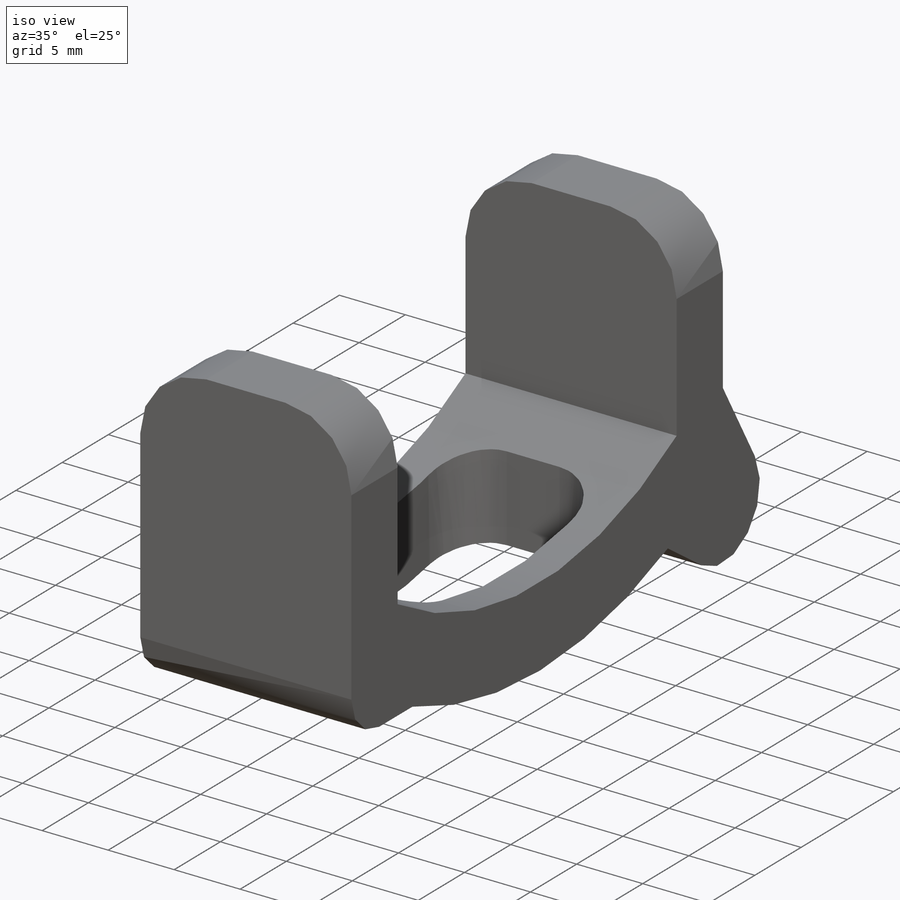
[diagram: iso view]
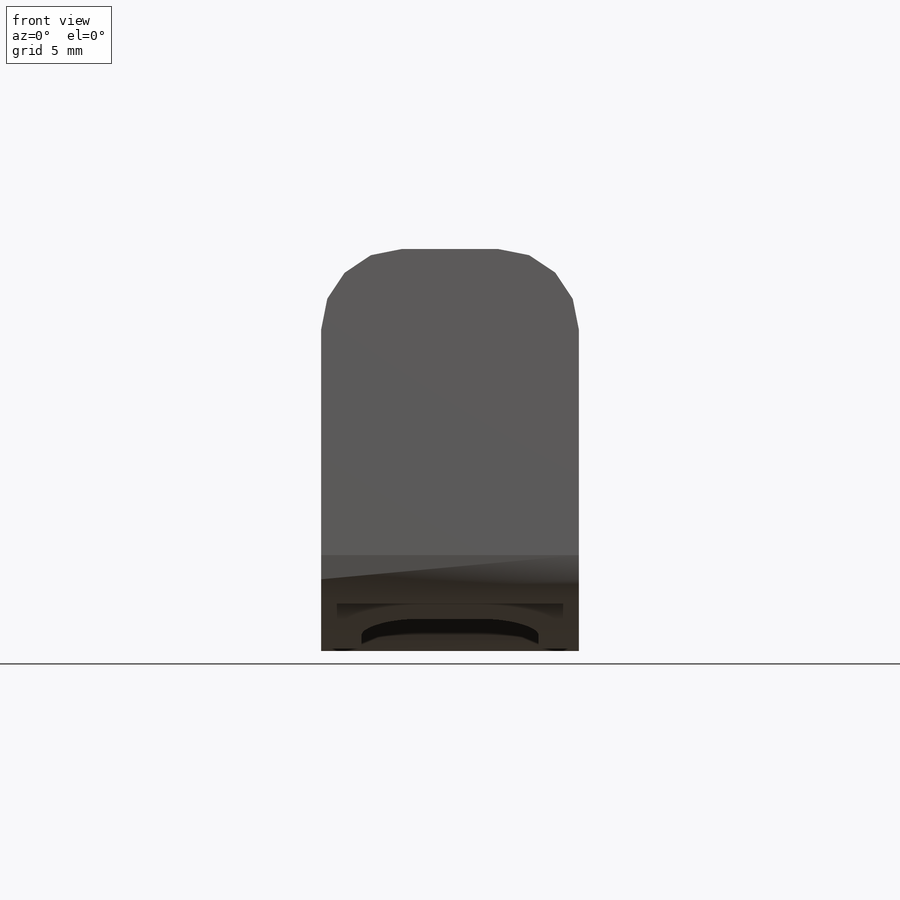
[diagram: front view]
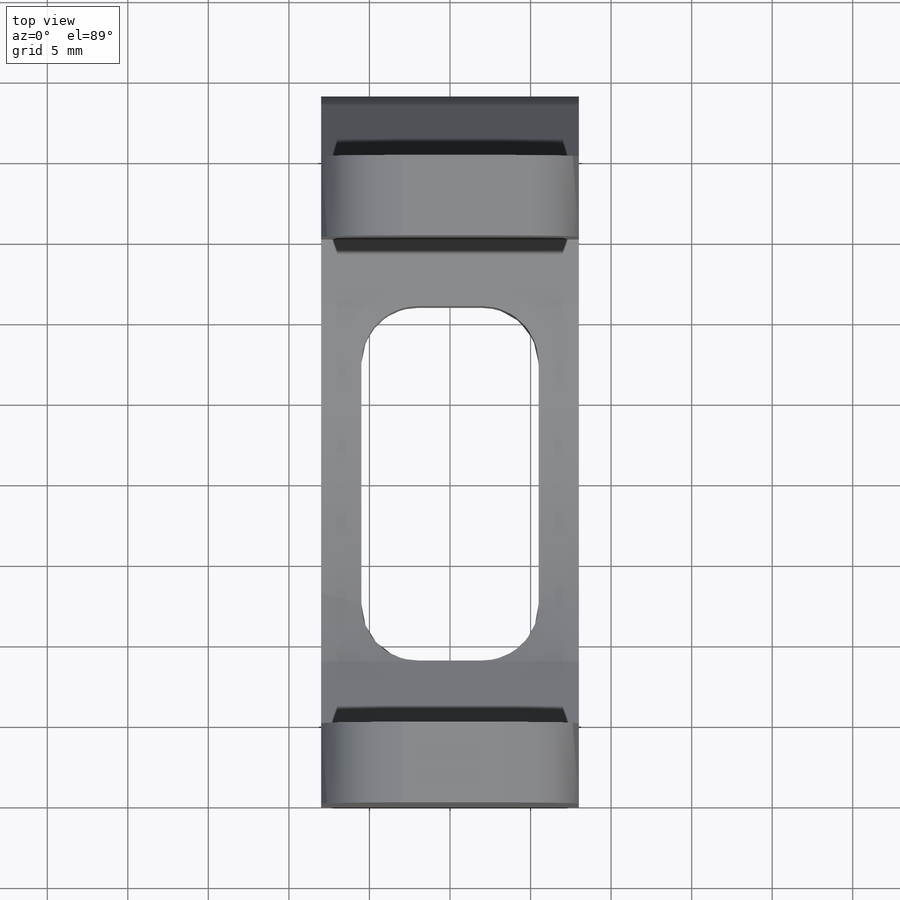
[diagram: top view]
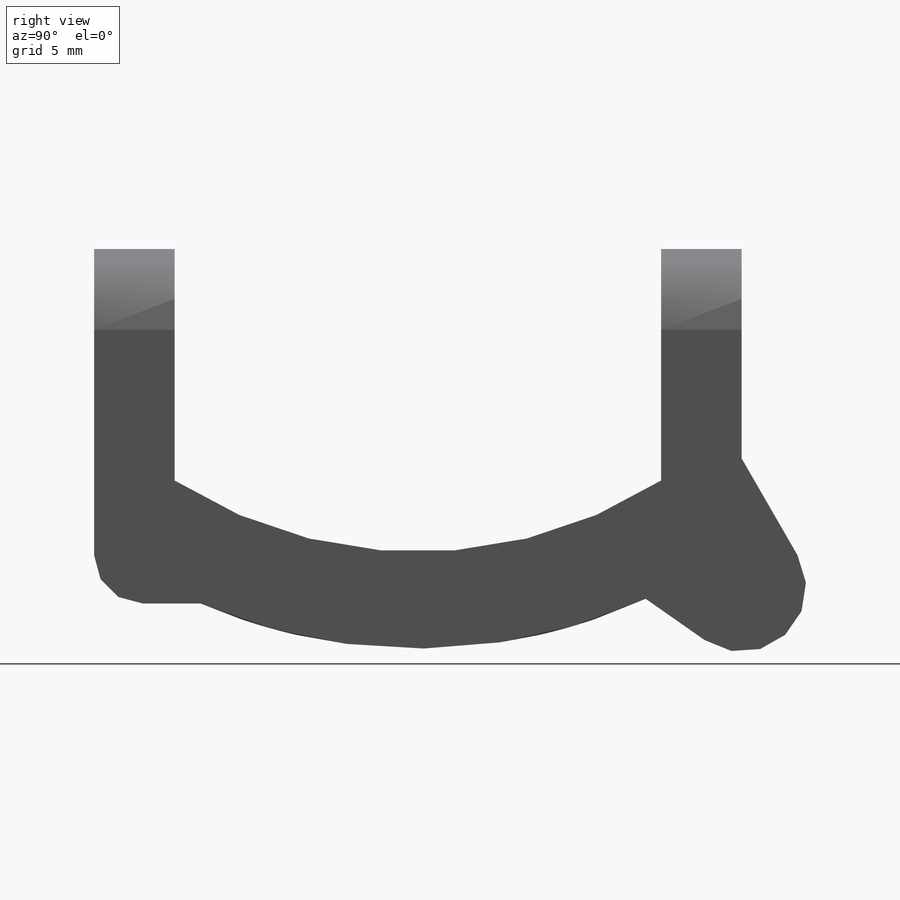
[diagram: right view]
SOLIDWORKS PART (.sldprt)
format: sldprt  version: not decoded by parser v0  size: 262,144 bytes
history: native  units: mm
features: plane x4, fillet x3, sketch x2, material x1, extrude x1, cut_extrude x1 (+10 scaffold rows collapsed)
feature tree (22):
  scaffold x10  (default folders/planes/origin — collapsed)
  material  "Materiál <není určen>"
  plane  "Přední rovina"
  plane  "Horní rovina"
  plane  "Pravá rovina"
  sketch  "Skica1"  dims[c1.D3=~35.675352mm c1.D4=4.0mm c1.D1=5.0mm c1.D2=40.2mm c2.D3=6.0mm c2.D5=25.0mm c2.D6=22.0mm c2.D7=~3.164385mm c3.D7=150.0deg c3.D8=6.6mm c3.D9=~4.411343mm c4.D9=30.0deg c5.D9=10.0mm c5.D10=4.4883mm c6.D10=25.0deg c6.D9=18.8mm]
  extrude  "Vysunout1"  Depth=16mm
  fillet  "Zaoblit1"  Radius=5mm
  fillet  "Zaoblit2"  Radius=3mm
  plane  "Rovina1"  Offset=8mm
  sketch  "Skica2"  dims[D1=22.0mm D2=11.0mm]
  cut_extrude  "Odebrat vysunutím1"  [1 undecoded]
  fillet  "Zaoblit3"  Radius=3.5mm
decode coverage: 6 of 7 modeling features carry decoded parameters
note: ~ marks probable driven/reference dimensions
note: 1 parameter value undecoded
note: suppression state not decoded; provenance and decode notes live in map.json
